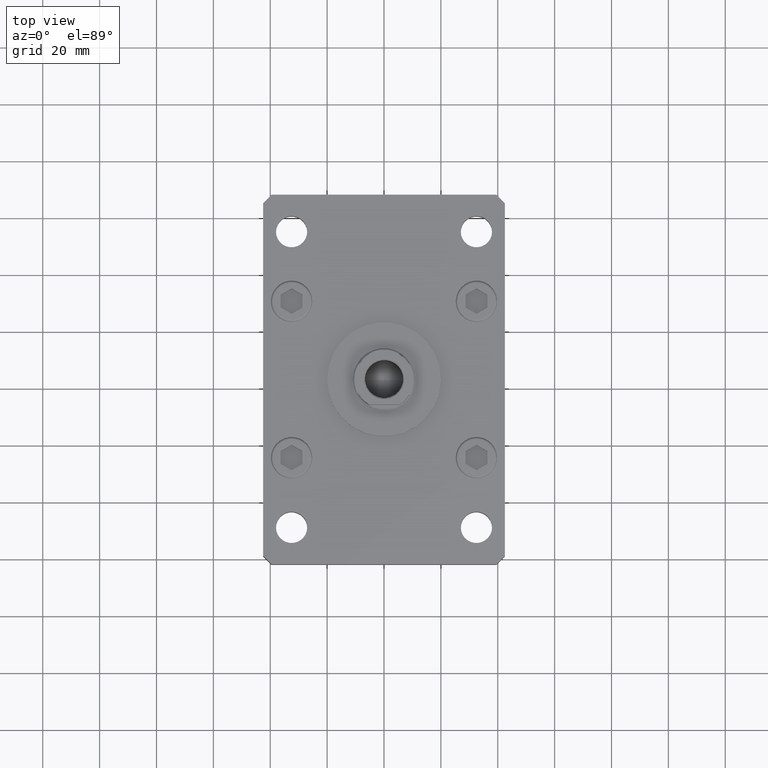
[diagram: clean part render]
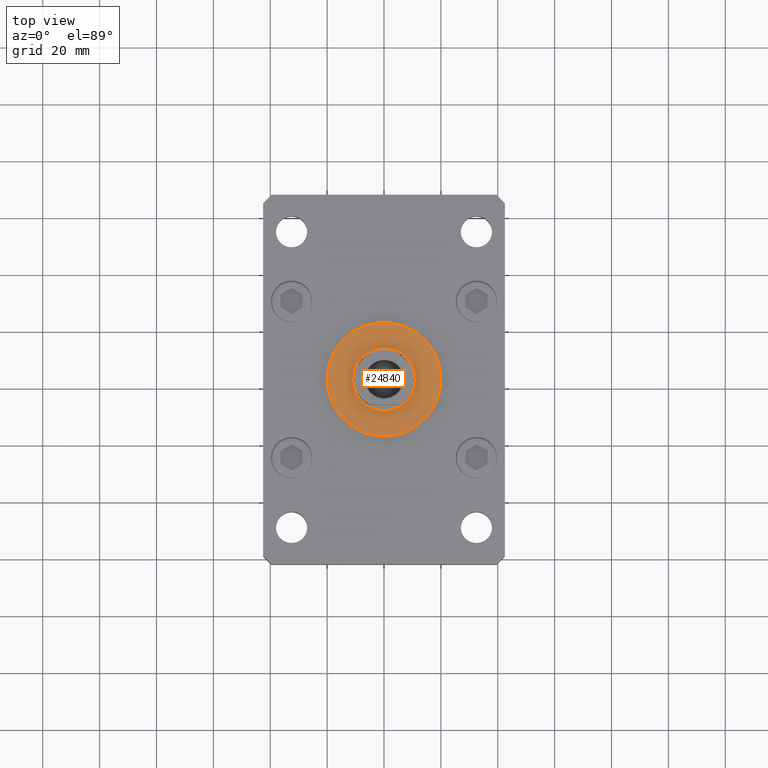
[diagram: same view with one face highlighted and labeled with its STEP entity id]
A machine part, top view. The second image highlights one B-rep face of the part: STEP entity #24840.
In plain terms, the highlighted planar face has unit normal (0, 0, 1).
Its self-contained STEP definition (entity closure, byte-faithful):
#644 = AXIS2_PLACEMENT_3D ( 'NONE', #25812, #4945, #29361 ) ;
#1284 = CARTESIAN_POINT ( 'NONE',  ( 0.000000000000000000, 0.000000000000000000, 17.00000000000000000 ) ) ;
#3712 = CIRCLE ( 'NONE', #29679, 11.00000000000000000 ) ;
#4126 = AXIS2_PLACEMENT_3D ( 'NONE', #20080, #16006, #8412 ) ;
#4945 = DIRECTION ( 'NONE',  ( 0.000000000000000000, 0.000000000000000000, 1.000000000000000000 ) ) ;
#5894 = EDGE_CURVE ( 'NONE', #6135, #20166, #3712, .T. ) ;
#6135 = VERTEX_POINT ( 'NONE', #38364 ) ;
#8412 = DIRECTION ( 'NONE',  ( 1.000000000000000000, 0.000000000000000000, 0.000000000000000000 ) ) ;
#8419 = AXIS2_PLACEMENT_3D ( 'NONE', #24994, #29344, #8742 ) ;
#8742 = DIRECTION ( 'NONE',  ( 1.000000000000000000, 0.000000000000000000, 0.000000000000000000 ) ) ;
#9106 = EDGE_CURVE ( 'NONE', #25989, #20458, #21064, .T. ) ;
#11693 = CARTESIAN_POINT ( 'NONE',  ( 0.000000000000000000, 0.000000000000000000, 17.00000000000000000 ) ) ;
#12507 = DIRECTION ( 'NONE',  ( 0.000000000000000000, 0.000000000000000000, 1.000000000000000000 ) ) ;
#14967 = EDGE_LOOP ( 'NONE', ( #52392, #40469 ) ) ;
#16006 = DIRECTION ( 'NONE',  ( 0.000000000000000000, 0.000000000000000000, 1.000000000000000000 ) ) ;
#17314 = ORIENTED_EDGE ( 'NONE', *, *, #5894, .F. ) ;
#20080 = CARTESIAN_POINT ( 'NONE',  ( 0.000000000000000000, 0.000000000000000000, 17.00000000000000000 ) ) ;
#20166 = VERTEX_POINT ( 'NONE', #47657 ) ;
#20458 = VERTEX_POINT ( 'NONE', #39210 ) ;
#21064 = CIRCLE ( 'NONE', #38443, 20.00000000000000000 ) ;
#21475 = PLANE ( 'NONE',  #644 ) ;
#23024 = EDGE_CURVE ( 'NONE', #20166, #6135, #31797, .T. ) ;
#24840 = ADVANCED_FACE ( 'NONE', ( #33703, #42122 ), #21475, .T. ) ;
#24994 = CARTESIAN_POINT ( 'NONE',  ( 0.000000000000000000, 0.000000000000000000, 17.00000000000000000 ) ) ;
#25812 = CARTESIAN_POINT ( 'NONE',  ( 0.000000000000000000, 0.000000000000000000, 17.00000000000000000 ) ) ;
#25916 = DIRECTION ( 'NONE',  ( 1.000000000000000000, 0.000000000000000000, 0.000000000000000000 ) ) ;
#25989 = VERTEX_POINT ( 'NONE', #48022 ) ;
#26592 = CIRCLE ( 'NONE', #4126, 20.00000000000000000 ) ;
#27838 = EDGE_LOOP ( 'NONE', ( #36710, #17314 ) ) ;
#29344 = DIRECTION ( 'NONE',  ( 0.000000000000000000, 0.000000000000000000, 1.000000000000000000 ) ) ;
#29361 = DIRECTION ( 'NONE',  ( 1.000000000000000000, 0.000000000000000000, -0.000000000000000000 ) ) ;
#29679 = AXIS2_PLACEMENT_3D ( 'NONE', #1284, #43289, #25916 ) ;
#31797 = CIRCLE ( 'NONE', #8419, 11.00000000000000000 ) ;
#33703 = FACE_BOUND ( 'NONE', #27838, .T. ) ;
#36710 = ORIENTED_EDGE ( 'NONE', *, *, #23024, .F. ) ;
#38364 = CARTESIAN_POINT ( 'NONE',  ( -11.00000000000000000, 1.347111479062088405E-15, 17.00000000000000000 ) ) ;
#38443 = AXIS2_PLACEMENT_3D ( 'NONE', #11693, #12507, #53480 ) ;
#39210 = CARTESIAN_POINT ( 'NONE',  ( -20.00000000000000000, 0.000000000000000000, 17.00000000000000000 ) ) ;
#40469 = ORIENTED_EDGE ( 'NONE', *, *, #9106, .T. ) ;
#42122 = FACE_OUTER_BOUND ( 'NONE', #14967, .T. ) ;
#43289 = DIRECTION ( 'NONE',  ( 0.000000000000000000, 0.000000000000000000, 1.000000000000000000 ) ) ;
#45298 = EDGE_CURVE ( 'NONE', #20458, #25989, #26592, .T. ) ;
#47657 = CARTESIAN_POINT ( 'NONE',  ( 11.00000000000000000, 0.000000000000000000, 17.00000000000000000 ) ) ;
#48022 = CARTESIAN_POINT ( 'NONE',  ( 20.00000000000000000, 2.449293598294706513E-15, 17.00000000000000000 ) ) ;
#52392 = ORIENTED_EDGE ( 'NONE', *, *, #45298, .T. ) ;
#53480 = DIRECTION ( 'NONE',  ( 1.000000000000000000, 0.000000000000000000, 0.000000000000000000 ) ) ;